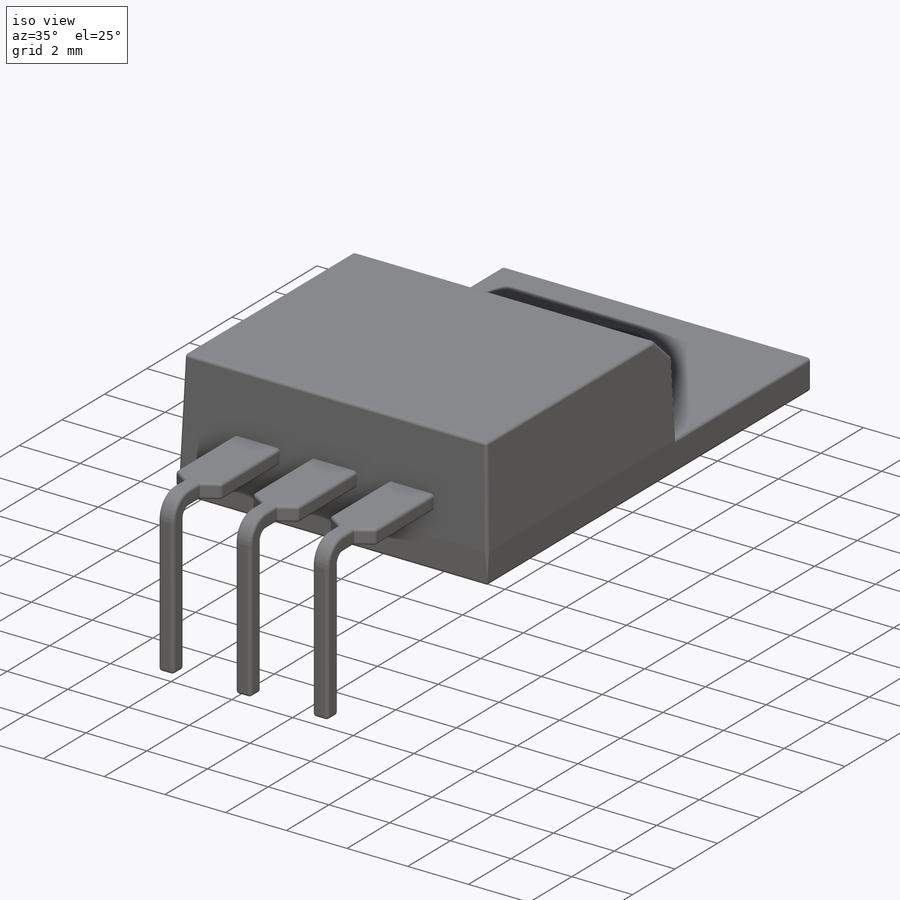
[diagram: iso view]
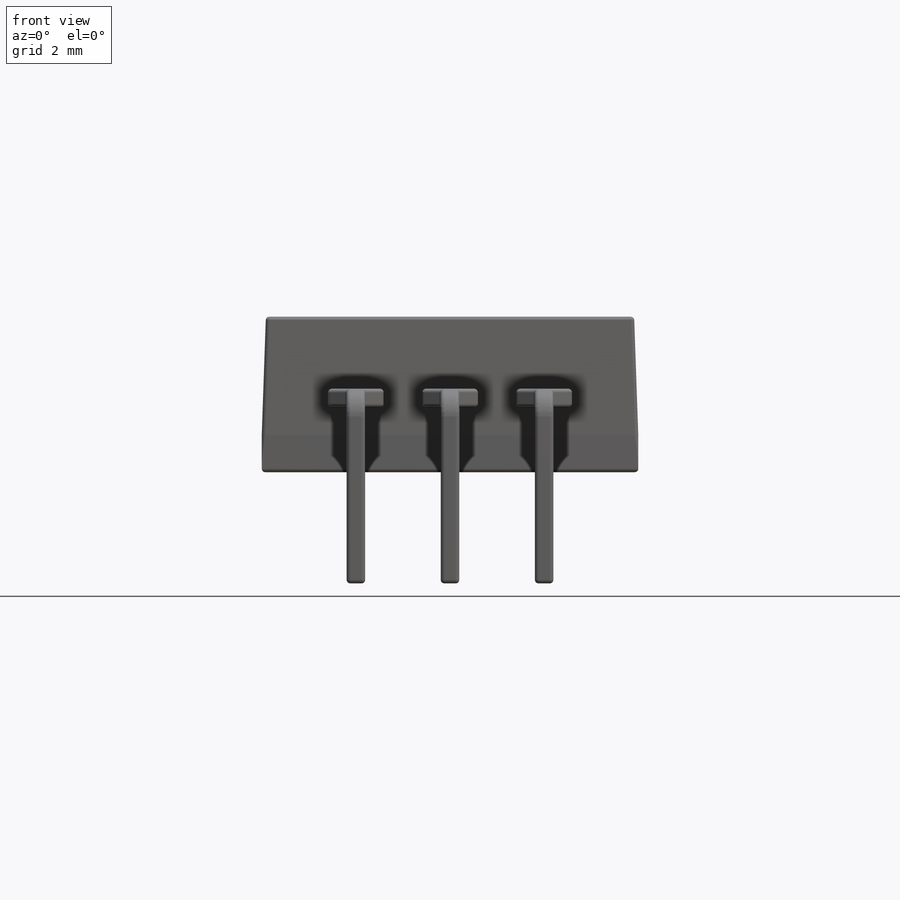
[diagram: front view]
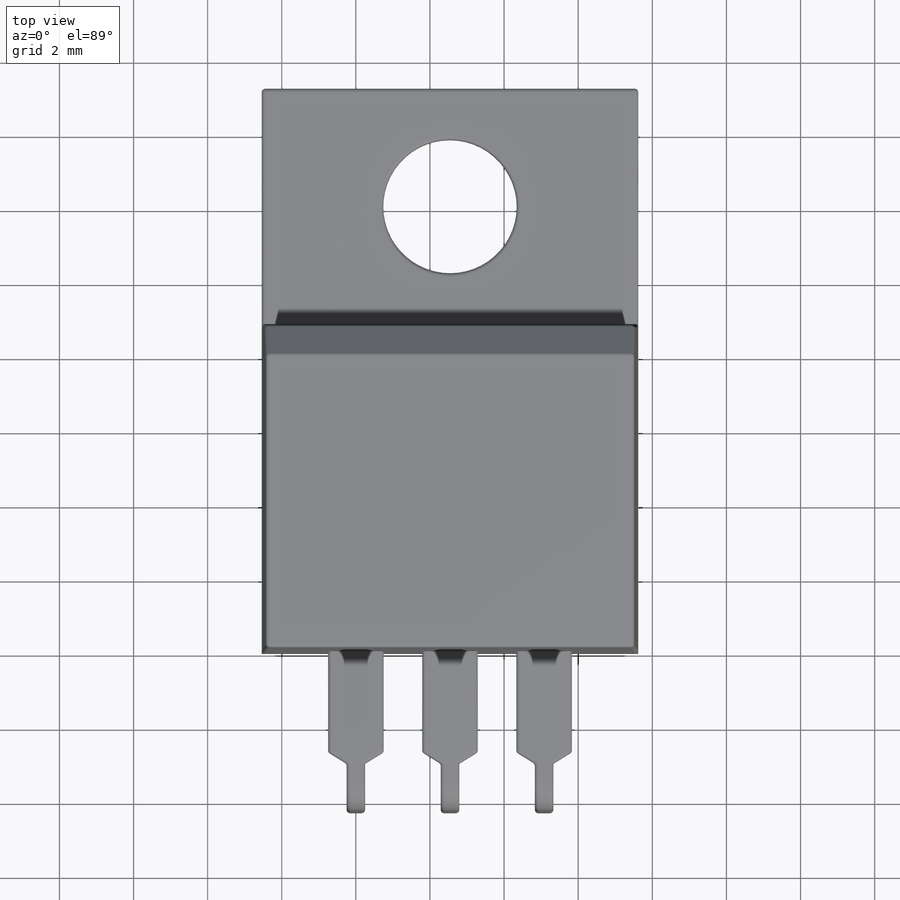
[diagram: top view]
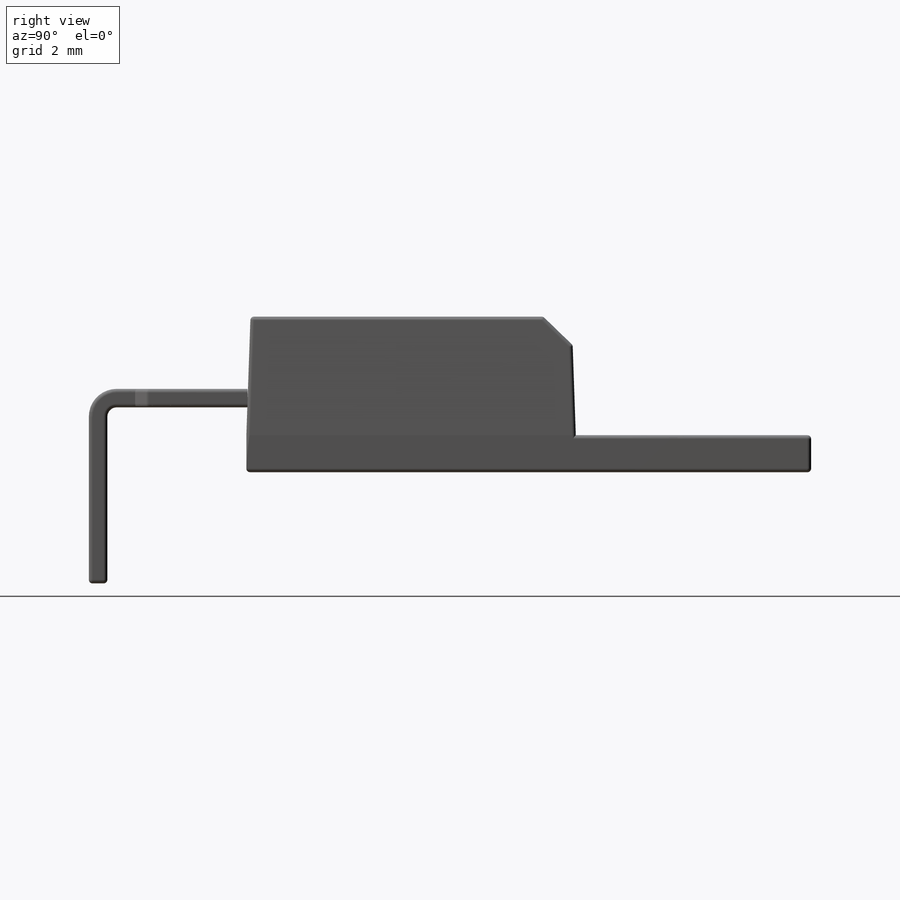
[diagram: right view]
SOLIDWORKS PART (.sldprt)
format: sldprt  version: not decoded by parser v0  size: 607,232 bytes
history: native  units: mm
features: sketch x5, fillet x4, extrude x2, material x1, chamfer x1, cut_extrude x1, pattern_linear x1 (+12 scaffold rows collapsed)
feature tree (27):
  scaffold x12  (default folders/planes/origin — collapsed)
  material  "Material <not specified>"
  sketch  "Sketch1"  dims[c1.D4=3.6mm c1.D1=19.24mm c1.D2=10.16mm c1.D3=4.0mm c1.D5=2.54mm c1.D6=19.14mm c2.D5=2.54mm c2.D6=3.18mm c2.D7=4.0mm]
  extrude  "Base-Extrude"  Depth=1mm
  sketch  "Sketch2"  dims[D1=6.35mm]
  extrude  "Boss-Extrude1"  Depth=3.2mm
  chamfer  "Chamfer3"  Distance=0.77mm Angle=44deg
  fillet  "Fillet2"  Radius=0.1mm
  fillet  "Fillet3"  Radius=0.1mm
  fillet  "Fillet5"  Radius=0.1mm
  sketch  "Sketch3"  dims[c1.D2=0.5mm c1.D1=2.0mm c1.D3=3.0mm c2.D1=0.75mm c2.D2=0.75mm c2.D5=0.5mm c2.D6=1.0mm c2.D7=5.0mm]
  sketch  "Sketch4"  dims[D1=1.31mm D2=1.0mm D3=0.5mm D4=0.25mm]
  cut_extrude  "Cut-Extrude1"  [1 undecoded]
  fillet  "Fillet6"  Radius=0.1mm
  pattern_linear  "LPattern1"  Count1=3 Count2=1 Spacing1=2.54mm Spacing2=50mm
  sketch  "Component_Outline"
decode coverage: 12 of 14 modeling features carry decoded parameters
note: 1 parameter value undecoded
note: suppression state not decoded; provenance and decode notes live in map.json
